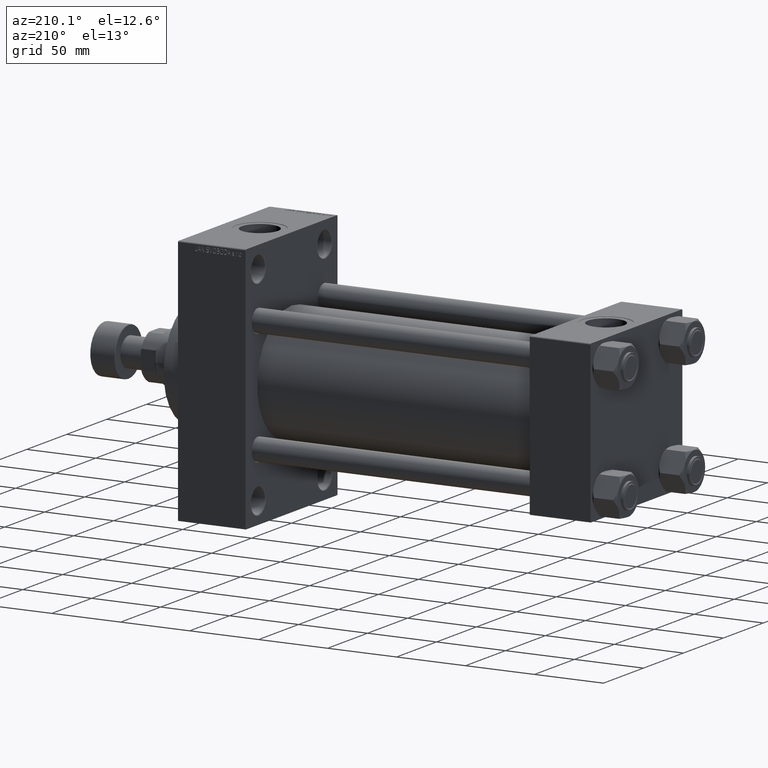
[diagram: clean part render]
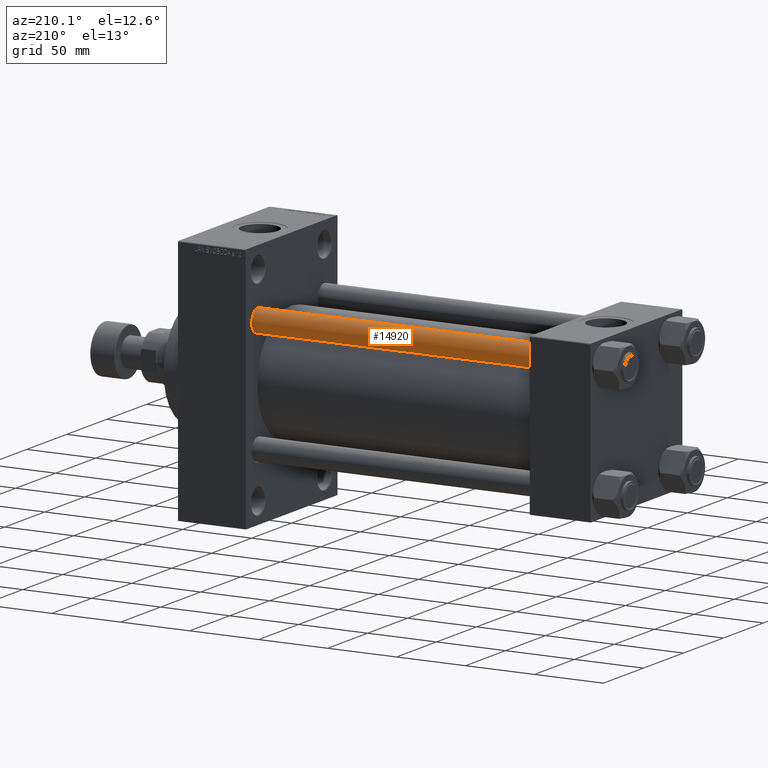
[diagram: same view with one face highlighted and labeled with its STEP entity id]
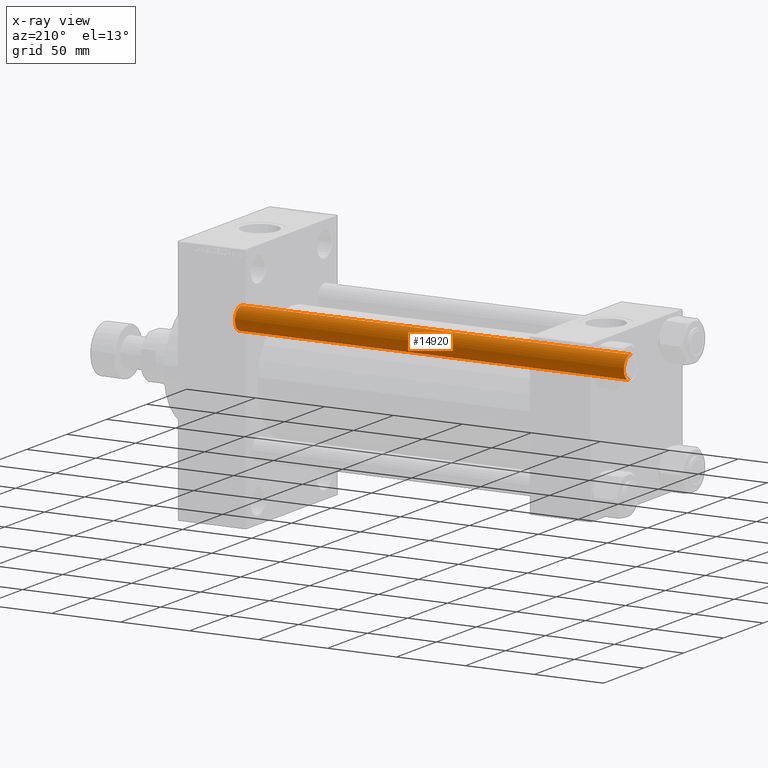
[diagram: x-ray of the same camera — body ghosted, the highlighted face saturated]
A machine part, auxiliary view. The second image highlights one B-rep face of the part: STEP entity #14920.
The next image is the same camera in x-ray: the body ghosted, the highlighted face saturated — about 0% of this face is hidden behind the body in this view.
In plain terms, the highlighted cylindrical surface (edge-blend (fillet) strip) has radius 8 mm, axis along (-1, -0, 0).
Its self-contained STEP definition (entity closure, byte-faithful):
#2863 = CARTESIAN_POINT ( 'NONE',  ( 8.000000000000000000, 9.797174393178825657E-16, 282.5000000000000000 ) ) ;
#3627 = CYLINDRICAL_SURFACE ( 'NONE', #46102, 8.000000000000000000 ) ;
#5573 = CARTESIAN_POINT ( 'NONE',  ( 0.000000000000000000, 0.000000000000000000, 0.5000000000000004441 ) ) ;
#5701 = CARTESIAN_POINT ( 'NONE',  ( -8.000000000000000000, 0.000000000000000000, 283.0000000000000000 ) ) ;
#6236 = CARTESIAN_POINT ( 'NONE',  ( 0.000000000000000000, 0.000000000000000000, 282.5000000000000000 ) ) ;
#11348 = CIRCLE ( 'NONE', #28564, 8.000000000000000000 ) ;
#11972 = ORIENTED_EDGE ( 'NONE', *, *, #33630, .T. ) ;
#12503 = ORIENTED_EDGE ( 'NONE', *, *, #40634, .T. ) ;
#13384 = ORIENTED_EDGE ( 'NONE', *, *, #27986, .T. ) ;
#14154 = DIRECTION ( 'NONE',  ( -0.000000000000000000, -0.000000000000000000, -1.000000000000000000 ) ) ;
#14500 = AXIS2_PLACEMENT_3D ( 'NONE', #6236, #47303, #39983 ) ;
#14920 = ADVANCED_FACE ( 'NONE', ( #36645 ), #3627, .T. ) ;
#17301 = DIRECTION ( 'NONE',  ( -0.000000000000000000, -0.000000000000000000, 1.000000000000000000 ) ) ;
#19090 = VECTOR ( 'NONE', #14154, 1000.000000000000000 ) ;
#19508 = VERTEX_POINT ( 'NONE', #41254 ) ;
#19698 = EDGE_CURVE ( 'NONE', #43711, #36369, #34386, .T. ) ;
#19976 = CIRCLE ( 'NONE', #14500, 8.000000000000000000 ) ;
#21238 = DIRECTION ( 'NONE',  ( -0.000000000000000000, -0.000000000000000000, -1.000000000000000000 ) ) ;
#24797 = ORIENTED_EDGE ( 'NONE', *, *, #19698, .F. ) ;
#25631 = CARTESIAN_POINT ( 'NONE',  ( 8.000000000000000000, 9.797174393178825657E-16, 283.0000000000000000 ) ) ;
#26650 = VECTOR ( 'NONE', #45395, 1000.000000000000000 ) ;
#27986 = EDGE_CURVE ( 'NONE', #40293, #19508, #33462, .T. ) ;
#28564 = AXIS2_PLACEMENT_3D ( 'NONE', #5573, #17301, #35163 ) ;
#28831 = DIRECTION ( 'NONE',  ( -1.000000000000000000, 0.000000000000000000, 0.000000000000000000 ) ) ;
#33462 = LINE ( 'NONE', #25631, #19090 ) ;
#33630 = EDGE_CURVE ( 'NONE', #19508, #36369, #11348, .T. ) ;
#34386 = LINE ( 'NONE', #5701, #26650 ) ;
#35163 = DIRECTION ( 'NONE',  ( 1.000000000000000000, 0.000000000000000000, 0.000000000000000000 ) ) ;
#36369 = VERTEX_POINT ( 'NONE', #42242 ) ;
#36645 = FACE_OUTER_BOUND ( 'NONE', #48042, .T. ) ;
#39983 = DIRECTION ( 'NONE',  ( 1.000000000000000000, 0.000000000000000000, 0.000000000000000000 ) ) ;
#40293 = VERTEX_POINT ( 'NONE', #2863 ) ;
#40634 = EDGE_CURVE ( 'NONE', #43711, #40293, #19976, .T. ) ;
#41254 = CARTESIAN_POINT ( 'NONE',  ( 8.000000000000000000, 9.797174393178825657E-16, 0.5000000000000004441 ) ) ;
#42242 = CARTESIAN_POINT ( 'NONE',  ( -8.000000000000000000, 0.000000000000000000, 0.5000000000000004441 ) ) ;
#43711 = VERTEX_POINT ( 'NONE', #48135 ) ;
#45395 = DIRECTION ( 'NONE',  ( -0.000000000000000000, -0.000000000000000000, -1.000000000000000000 ) ) ;
#46102 = AXIS2_PLACEMENT_3D ( 'NONE', #48116, #21238, #28831 ) ;
#47303 = DIRECTION ( 'NONE',  ( 0.000000000000000000, 0.000000000000000000, -1.000000000000000000 ) ) ;
#48042 = EDGE_LOOP ( 'NONE', ( #12503, #13384, #11972, #24797 ) ) ;
#48116 = CARTESIAN_POINT ( 'NONE',  ( 0.000000000000000000, 0.000000000000000000, 283.0000000000000000 ) ) ;
#48135 = CARTESIAN_POINT ( 'NONE',  ( -8.000000000000000000, 0.000000000000000000, 282.5000000000000000 ) ) ;